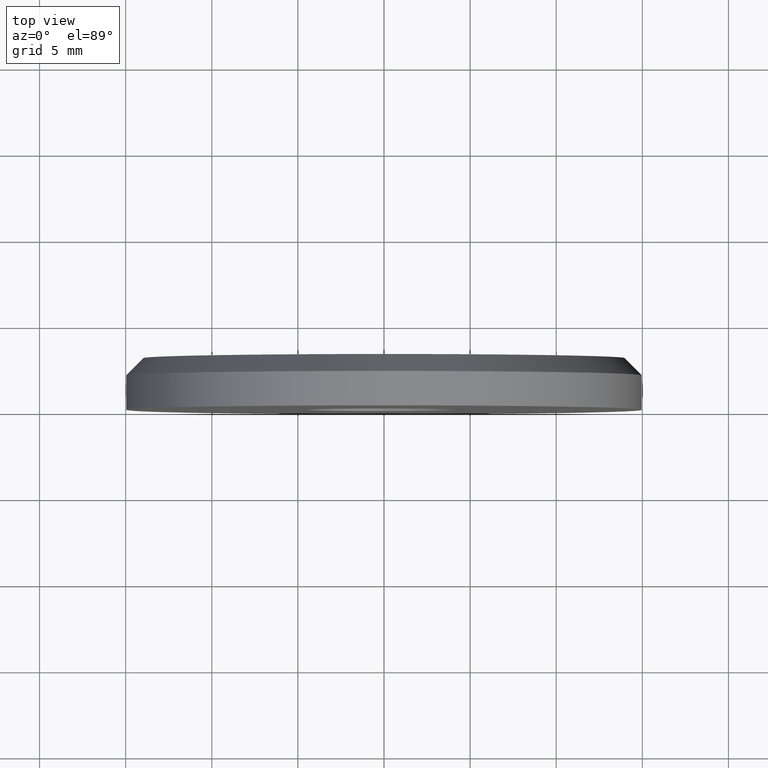
[diagram: clean part render]
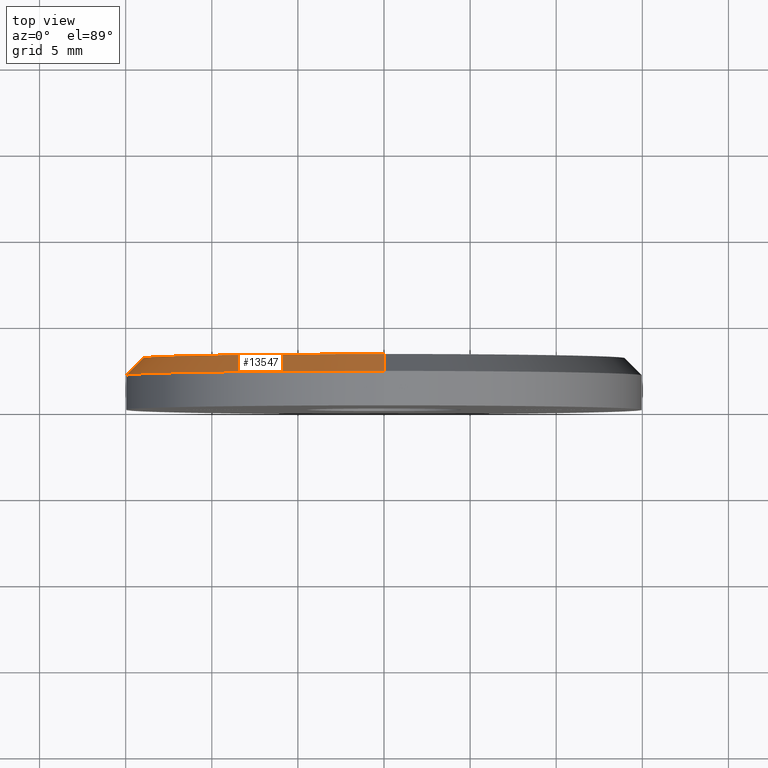
[diagram: same view with one face highlighted and labeled with its STEP entity id]
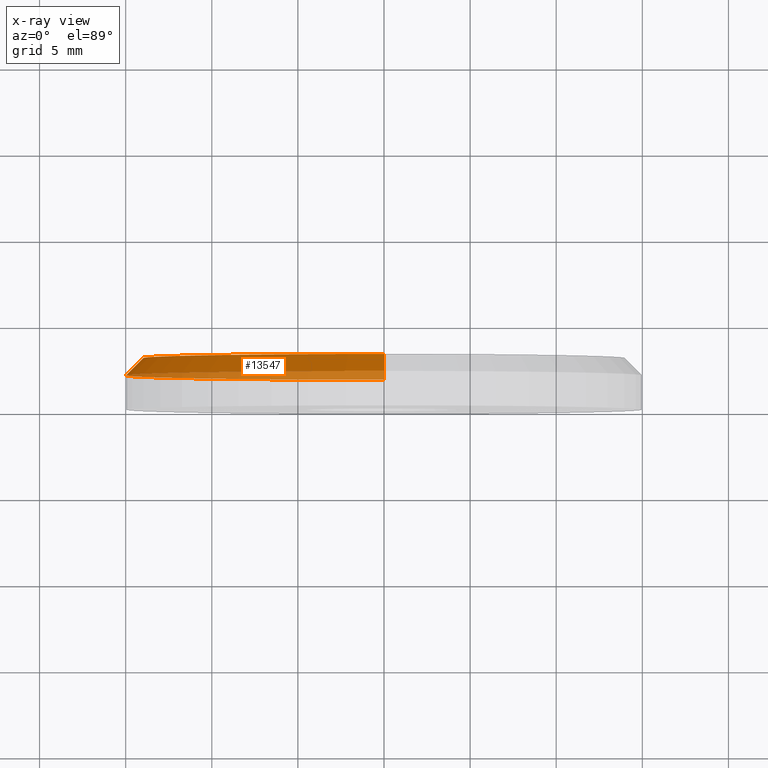
[diagram: x-ray of the same camera — body ghosted, the highlighted face saturated]
A machine part, top view. The second image highlights one B-rep face of the part: STEP entity #13547.
The next image is the same camera in x-ray: the body ghosted, the highlighted face saturated — about 30% of this face is hidden behind the body in this view.
In plain terms, the highlighted conical surface has half-angle 45 deg.
Its self-contained STEP definition (entity closure, byte-faithful):
#973 = EDGE_CURVE ( 'NONE', #12264, #4020, #12800, .T. ) ;
#1108 = FACE_OUTER_BOUND ( 'NONE', #8629, .T. ) ;
#1369 = EDGE_CURVE ( 'NONE', #4020, #12858, #1946, .T. ) ;
#1430 = CARTESIAN_POINT ( 'NONE',  ( 0.000000000000000000, 3.000000000000000000, -13.99999999999999645 ) ) ;
#1946 = LINE ( 'NONE', #9973, #14613 ) ;
#2235 = VECTOR ( 'NONE', #6287, 999.9999999999998863 ) ;
#3036 = DIRECTION ( 'NONE',  ( 8.659560562354941486E-17, -0.7071067811865469066, 0.7071067811865482389 ) ) ;
#4020 = VERTEX_POINT ( 'NONE', #5539 ) ;
#4921 = DIRECTION ( 'NONE',  ( 0.000000000000000000, 0.000000000000000000, 1.000000000000000000 ) ) ;
#5105 = DIRECTION ( 'NONE',  ( 0.000000000000000000, -1.000000000000000000, 0.000000000000000000 ) ) ;
#5539 = CARTESIAN_POINT ( 'NONE',  ( 1.775737858763662015E-15, 3.000000000000000000, 13.99999999999999645 ) ) ;
#5871 = LINE ( 'NONE', #8719, #2235 ) ;
#6109 = AXIS2_PLACEMENT_3D ( 'NONE', #12825, #10621, #4921 ) ;
#6287 = DIRECTION ( 'NONE',  ( 0.000000000000000000, -0.7071067811865469066, -0.7071067811865482389 ) ) ;
#6492 = CARTESIAN_POINT ( 'NONE',  ( 0.000000000000000000, 3.000000000000000000, 0.000000000000000000 ) ) ;
#7107 = ORIENTED_EDGE ( 'NONE', *, *, #1369, .F. ) ;
#7281 = ORIENTED_EDGE ( 'NONE', *, *, #11158, .T. ) ;
#7798 = VERTEX_POINT ( 'NONE', #12583 ) ;
#8629 = EDGE_LOOP ( 'NONE', ( #7107, #8887, #7281, #11292 ) ) ;
#8719 = CARTESIAN_POINT ( 'NONE',  ( 0.000000000000000000, 3.000000000000000000, -13.99999999999999645 ) ) ;
#8887 = ORIENTED_EDGE ( 'NONE', *, *, #973, .F. ) ;
#8960 = DIRECTION ( 'NONE',  ( 0.000000000000000000, -1.000000000000000000, 0.000000000000000000 ) ) ;
#9973 = CARTESIAN_POINT ( 'NONE',  ( 1.714505518806294244E-15, 3.000000000000000000, 13.99999999999999645 ) ) ;
#10621 = DIRECTION ( 'NONE',  ( 0.000000000000000000, 1.000000000000000000, 0.000000000000000000 ) ) ;
#10848 = CARTESIAN_POINT ( 'NONE',  ( 0.000000000000000000, 1.999999999999999112, 0.000000000000000000 ) ) ;
#10899 = AXIS2_PLACEMENT_3D ( 'NONE', #6492, #8960, #13505 ) ;
#11158 = EDGE_CURVE ( 'NONE', #12264, #7798, #5871, .T. ) ;
#11292 = ORIENTED_EDGE ( 'NONE', *, *, #12660, .F. ) ;
#12264 = VERTEX_POINT ( 'NONE', #1430 ) ;
#12583 = CARTESIAN_POINT ( 'NONE',  ( 0.000000000000000000, 1.999999999999999112, -15.00000000000000000 ) ) ;
#12660 = EDGE_CURVE ( 'NONE', #12858, #7798, #14158, .T. ) ;
#12800 = CIRCLE ( 'NONE', #6109, 13.99999999999999645 ) ;
#12825 = CARTESIAN_POINT ( 'NONE',  ( 0.000000000000000000, 3.000000000000000000, 0.000000000000000000 ) ) ;
#12858 = VERTEX_POINT ( 'NONE', #14998 ) ;
#12910 = AXIS2_PLACEMENT_3D ( 'NONE', #10848, #5105, #13168 ) ;
#13168 = DIRECTION ( 'NONE',  ( 0.000000000000000000, 0.000000000000000000, 1.000000000000000000 ) ) ;
#13505 = DIRECTION ( 'NONE',  ( 0.000000000000000000, 0.000000000000000000, -1.000000000000000000 ) ) ;
#13547 = ADVANCED_FACE ( 'NONE', ( #1108 ), #14503, .T. ) ;
#14158 = CIRCLE ( 'NONE', #12910, 15.00000000000000000 ) ;
#14503 = CONICAL_SURFACE ( 'NONE', #10899, 13.99999999999999645, 0.7853981633974491672 ) ;
#14613 = VECTOR ( 'NONE', #3036, 999.9999999999998863 ) ;
#14998 = CARTESIAN_POINT ( 'NONE',  ( 1.836970198721029589E-15, 1.999999999999999112, 15.00000000000000000 ) ) ;